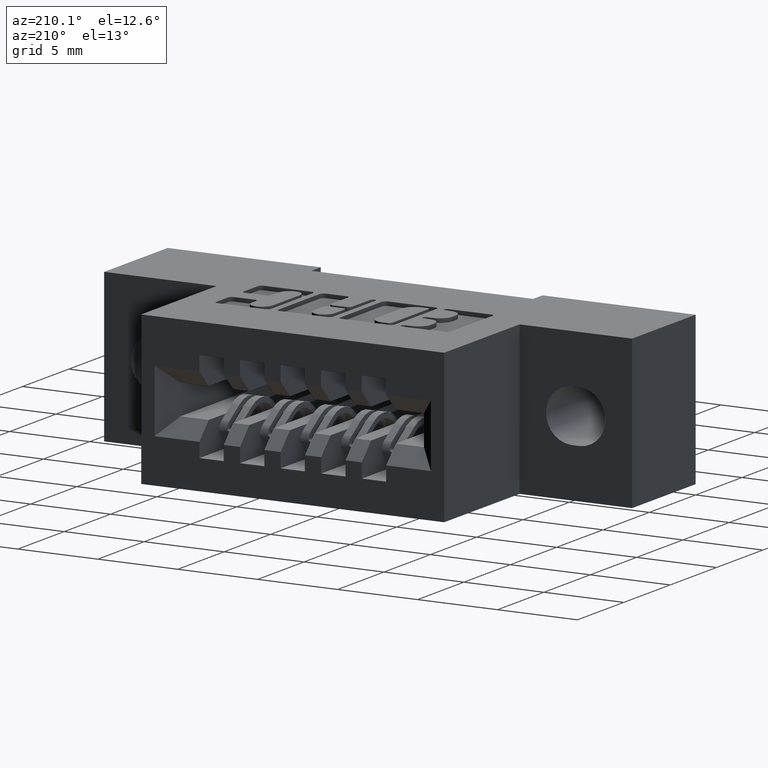
[diagram: clean part render]
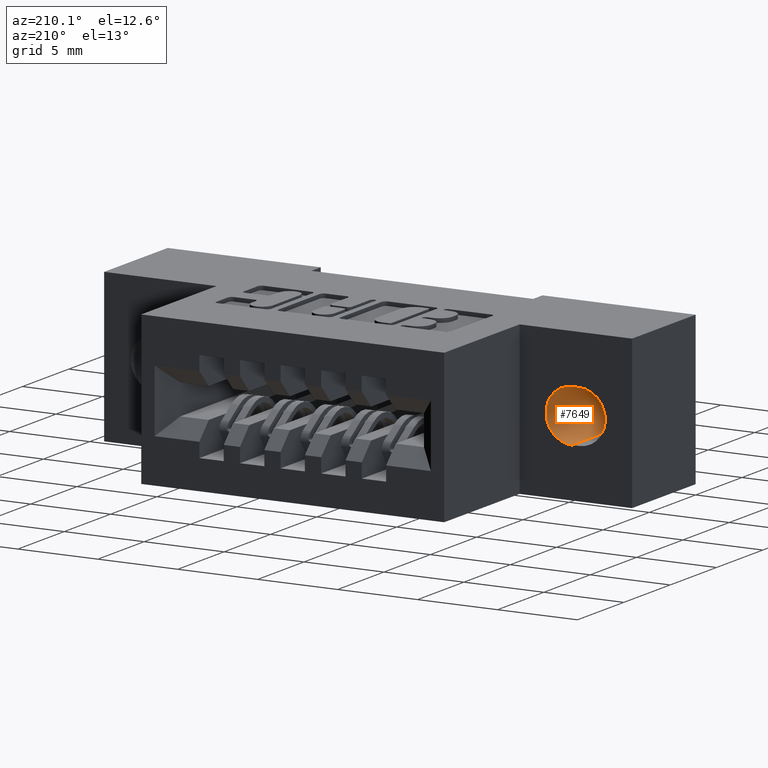
[diagram: same view with one face highlighted and labeled with its STEP entity id]
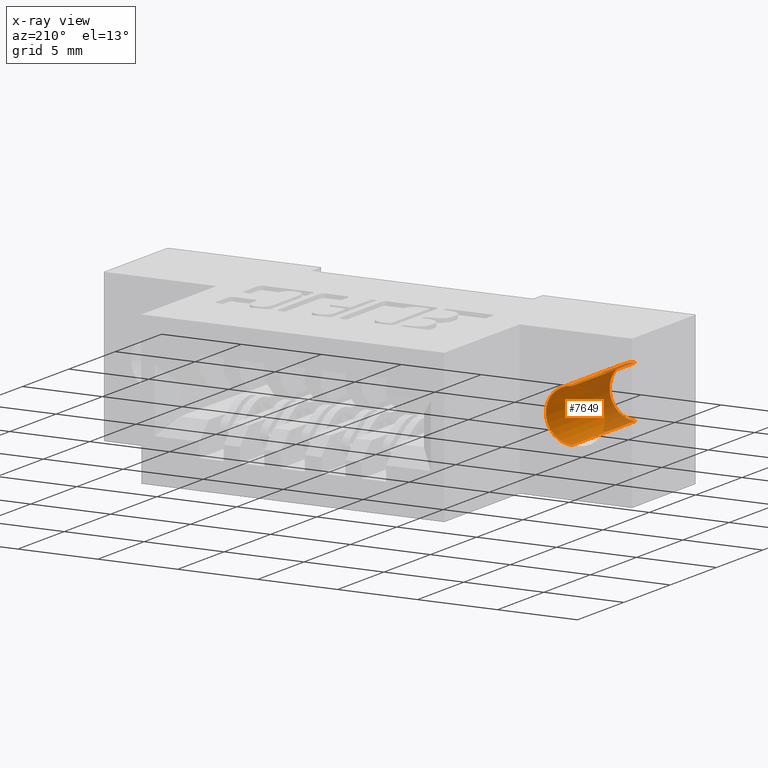
[diagram: x-ray of the same camera — body ghosted, the highlighted face saturated]
A machine part, auxiliary view. The second image highlights one B-rep face of the part: STEP entity #7649.
The next image is the same camera in x-ray: the body ghosted, the highlighted face saturated — about 28% of this face is hidden behind the body in this view.
In plain terms, the highlighted cylindrical surface (edge-blend (fillet) strip) has radius 1.6256 mm, axis along (0, 1, 0).
Its self-contained STEP definition (entity closure, byte-faithful):
#355 = VECTOR ( 'NONE', #1152, 39.37007874015748100 ) ;
#546 = LINE ( 'NONE', #7935, #355 ) ;
#734 = ORIENTED_EDGE ( 'NONE', *, *, #6707, .F. ) ;
#740 = VERTEX_POINT ( 'NONE', #6159 ) ;
#1018 = ORIENTED_EDGE ( 'NONE', *, *, #2425, .T. ) ;
#1152 = DIRECTION ( 'NONE',  ( -0.0000000000000000000, 1.000000000000000000, -0.0000000000000000000 ) ) ;
#1464 = CARTESIAN_POINT ( 'NONE',  ( 0.1479999999999996300, 0.0000000000000000000, -0.1850000000000000000 ) ) ;
#1473 = VERTEX_POINT ( 'NONE', #6710 ) ;
#1657 = CARTESIAN_POINT ( 'NONE',  ( 0.1480000000000001600, 0.0000000000000000000, -0.2489999999999998300 ) ) ;
#1982 = CARTESIAN_POINT ( 'NONE',  ( 0.1479999999999996300, 0.0000000000000000000, -0.1850000000000000000 ) ) ;
#2425 = EDGE_CURVE ( 'NONE', #740, #1473, #546, .T. ) ;
#2905 = AXIS2_PLACEMENT_3D ( 'NONE', #1464, #5777, #7590 ) ;
#3143 = CIRCLE ( 'NONE', #6034, 0.06399999999999948800 ) ;
#3324 = CARTESIAN_POINT ( 'NONE',  ( 0.1480000000000001600, 0.2699999999999999600, -0.2489999999999998300 ) ) ;
#3409 = EDGE_CURVE ( 'NONE', #1473, #7206, #3143, .T. ) ;
#3629 = EDGE_CURVE ( 'NONE', #740, #5771, #6022, .T. ) ;
#3717 = CYLINDRICAL_SURFACE ( 'NONE', #6867, 0.06399999999999948800 ) ;
#4195 = EDGE_LOOP ( 'NONE', ( #7637, #734, #6005, #1018 ) ) ;
#4527 = VECTOR ( 'NONE', #7257, 39.37007874015748100 ) ;
#5081 = DIRECTION ( 'NONE',  ( -0.0000000000000000000, 1.000000000000000000, -0.0000000000000000000 ) ) ;
#5771 = VERTEX_POINT ( 'NONE', #7488 ) ;
#5777 = DIRECTION ( 'NONE',  ( 0.0000000000000000000, 1.000000000000000000, 0.0000000000000000000 ) ) ;
#6005 = ORIENTED_EDGE ( 'NONE', *, *, #3629, .F. ) ;
#6022 = CIRCLE ( 'NONE', #2905, 0.06399999999999948800 ) ;
#6034 = AXIS2_PLACEMENT_3D ( 'NONE', #6889, #6819, #6940 ) ;
#6159 = CARTESIAN_POINT ( 'NONE',  ( 0.1479999999999996300, 0.0000000000000000000, -0.1210000000000008400 ) ) ;
#6362 = DIRECTION ( 'NONE',  ( 0.0000000000000000000, 0.0000000000000000000, 1.000000000000000000 ) ) ;
#6707 = EDGE_CURVE ( 'NONE', #5771, #7206, #7796, .T. ) ;
#6710 = CARTESIAN_POINT ( 'NONE',  ( 0.1479999999999996300, 0.2699999999999999600, -0.1210000000000005100 ) ) ;
#6819 = DIRECTION ( 'NONE',  ( 0.0000000000000000000, 1.000000000000000000, 0.0000000000000000000 ) ) ;
#6867 = AXIS2_PLACEMENT_3D ( 'NONE', #1982, #5081, #6362 ) ;
#6889 = CARTESIAN_POINT ( 'NONE',  ( 0.1479999999999996300, 0.2699999999999999600, -0.1850000000000000000 ) ) ;
#6940 = DIRECTION ( 'NONE',  ( 0.0000000000000000000, 0.0000000000000000000, 1.000000000000000000 ) ) ;
#7037 = FACE_OUTER_BOUND ( 'NONE', #4195, .T. ) ;
#7206 = VERTEX_POINT ( 'NONE', #3324 ) ;
#7257 = DIRECTION ( 'NONE',  ( -0.0000000000000000000, 1.000000000000000000, -0.0000000000000000000 ) ) ;
#7488 = CARTESIAN_POINT ( 'NONE',  ( 0.1480000000000001600, 0.0000000000000000000, -0.2489999999999998300 ) ) ;
#7590 = DIRECTION ( 'NONE',  ( 0.0000000000000000000, 0.0000000000000000000, 1.000000000000000000 ) ) ;
#7637 = ORIENTED_EDGE ( 'NONE', *, *, #3409, .T. ) ;
#7649 = ADVANCED_FACE ( 'NONE', ( #7037 ), #3717, .F. ) ;
#7796 = LINE ( 'NONE', #1657, #4527 ) ;
#7935 = CARTESIAN_POINT ( 'NONE',  ( 0.1479999999999996300, 0.0000000000000000000, -0.1210000000000005100 ) ) ;